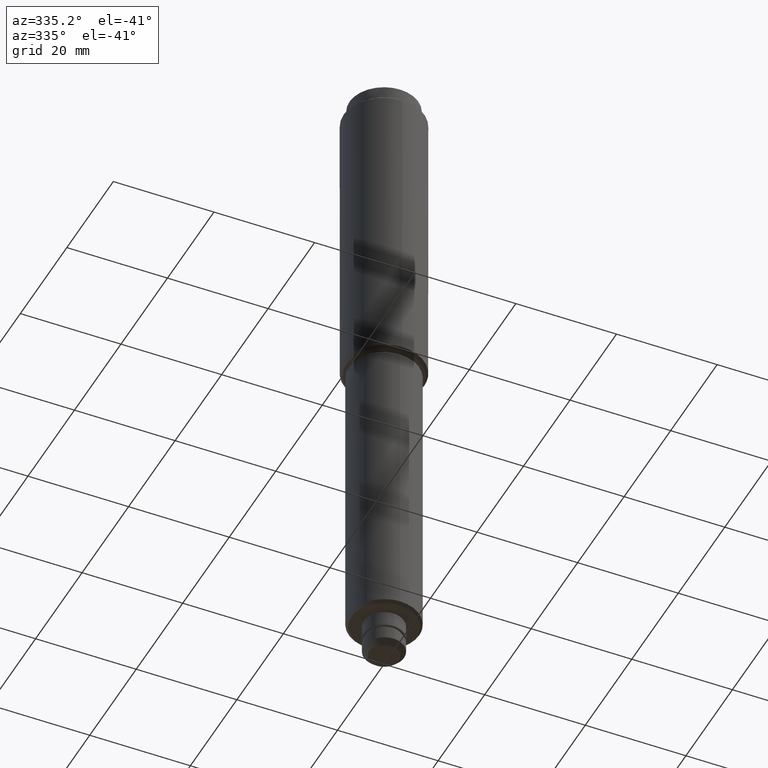
[diagram: clean part render]
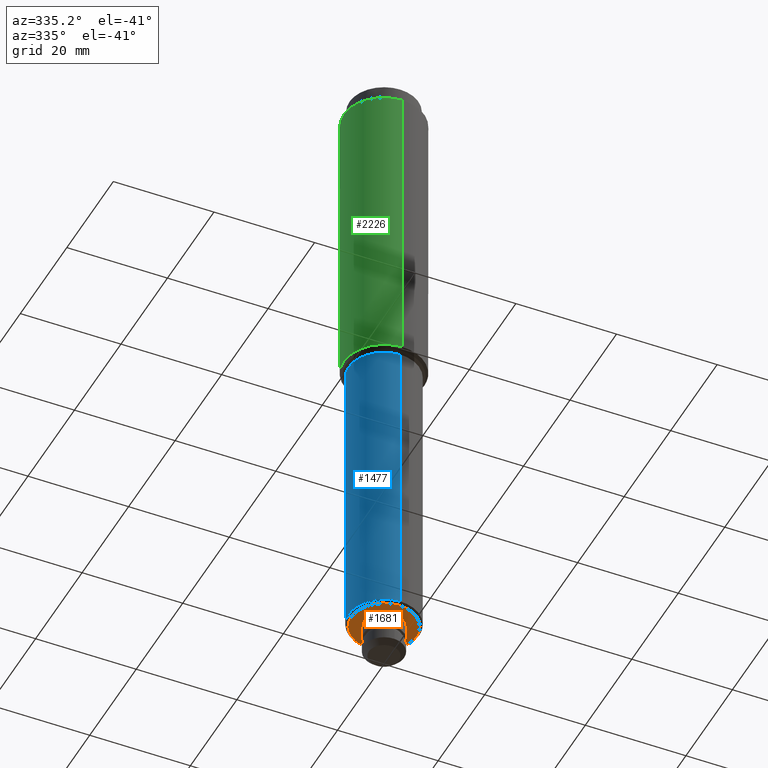
[diagram: same view with three faces highlighted in distinct colors, each labeled with its STEP entity id]
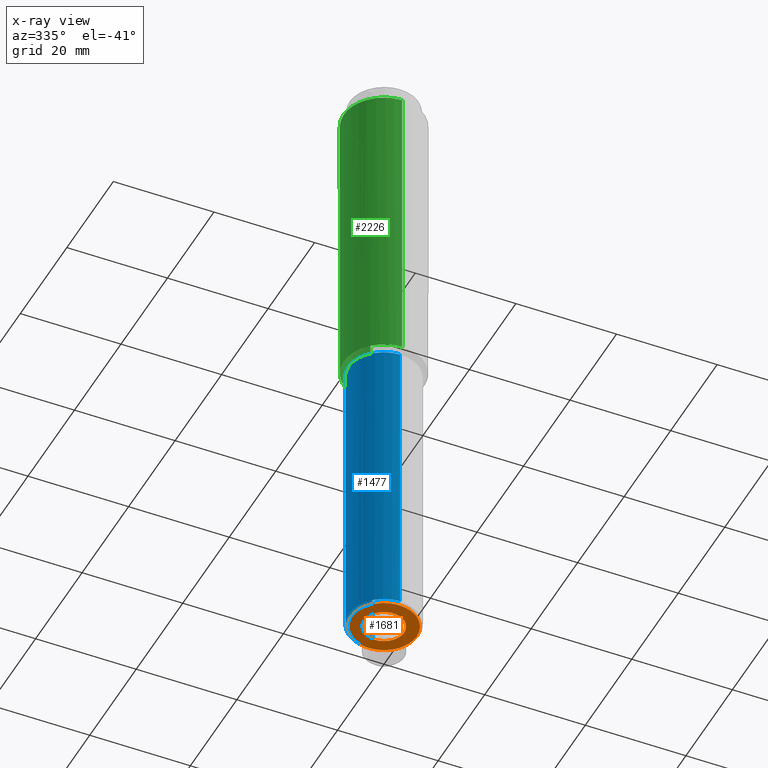
[diagram: x-ray of the same camera — body ghosted, the three highlighted faces saturated]
A machine part, auxiliary view with three faces highlighted in distinct colors.
The next image is the same camera in x-ray (body ghosted, the three faces saturated) — at least one of them is partly hidden behind the body in this view.
Their STEP definitions:

[orange] entity #1681 — the highlighted face is a freeform B-spline surface patch.
#1236=CARTESIAN_POINT('',(-6.332417995552420,1.466452294156194,7.000000000110163));
#1237=VERTEX_POINT('',#1236);
#1243=CARTESIAN_POINT('',(-6.500000000000000,0.0,7.0));
#1244=VERTEX_POINT('',#1243);
#1245=CARTESIAN_POINT('',(-6.500000000000000,0.0,7.0));
#1246=CARTESIAN_POINT('',(-6.500000000000000,0.742801545387060,7.0));
#1247=CARTESIAN_POINT('',(-6.332417995552420,1.466452294156195,7.000000000110163));
#1255=(BOUNDED_CURVE()B_SPLINE_CURVE(2,(#1245,#1246,#1247),.UNSPECIFIED.,.F.,.U.)B_SPLINE_CURVE_WITH_KNOTS((3,3),(0.500000000000000,0.538577028263429),.UNSPECIFIED.)CURVE()GEOMETRIC_REPRESENTATION_ITEM()RATIONAL_B_SPLINE_CURVE((1.0,0.954804200078667,0.923556557364962))REPRESENTATION_ITEM(''));
#1256=EDGE_CURVE('',#1244,#1237,#1255,.T.);
#1258=CARTESIAN_POINT('',(6.500000000000000,0.0,7.0));
#1259=VERTEX_POINT('',#1258);
#1260=CARTESIAN_POINT('',(6.500000000000000,0.0,7.0));
#1261=CARTESIAN_POINT('',(6.500000000000000,-6.500000000000000,6.999999999999999));
#1262=CARTESIAN_POINT('',(0.0,-6.500000000000000,7.0));
#1263=CARTESIAN_POINT('',(-6.500000000000000,-6.500000000000000,6.999999999999999));
#1264=CARTESIAN_POINT('',(-6.500000000000000,0.0,7.0));
#1272=(BOUNDED_CURVE()B_SPLINE_CURVE(2,(#1260,#1261,#1262,#1263,#1264),.UNSPECIFIED.,.F.,.U.)B_SPLINE_CURVE_WITH_KNOTS((3,2,3),(0.0,0.250000000000000,0.500000000000000),.UNSPECIFIED.)CURVE()GEOMETRIC_REPRESENTATION_ITEM()RATIONAL_B_SPLINE_CURVE((1.0,0.707106781186547,1.0,0.707106781186547,1.0))REPRESENTATION_ITEM(''));
#1273=EDGE_CURVE('',#1259,#1244,#1272,.T.);
#1275=CARTESIAN_POINT('',(-0.056722481756106,6.499752500046647,7.000000000138400));
#1276=VERTEX_POINT('',#1275);
#1277=CARTESIAN_POINT('',(-0.056722481756106,6.499752500046648,7.000000000138401));
#1278=CARTESIAN_POINT('',(-0.028361781350086,6.500000000000000,7.0));
#1279=CARTESIAN_POINT('',(0.0,6.500000000000000,7.0));
#1280=CARTESIAN_POINT('',(6.500000000000000,6.500000000000000,6.999999999999999));
#1281=CARTESIAN_POINT('',(6.500000000000000,0.0,7.0));
#1289=(BOUNDED_CURVE()B_SPLINE_CURVE(2,(#1277,#1278,#1279,#1280,#1281),.UNSPECIFIED.,.F.,.U.)B_SPLINE_CURVE_WITH_KNOTS((3,2,3),(0.748460105609975,0.750000000000000,1.0),.UNSPECIFIED.)CURVE()GEOMETRIC_REPRESENTATION_ITEM()RATIONAL_B_SPLINE_CURVE((0.996414027973032,0.998195901501891,1.0,0.707106781186547,1.0))REPRESENTATION_ITEM(''));
#1290=EDGE_CURVE('',#1276,#1259,#1289,.T.);
#1392=CARTESIAN_POINT('',(-6.332417995552420,1.466452294156195,7.000000000110163));
#1393=CARTESIAN_POINT('',(-5.177161718968210,6.455067102054395,7.0));
#1394=CARTESIAN_POINT('',(-0.056722481756106,6.499752500046647,7.000000000138400));
#1402=(BOUNDED_CURVE()B_SPLINE_CURVE(2,(#1392,#1393,#1394),.UNSPECIFIED.,.F.,.U.)B_SPLINE_CURVE_WITH_KNOTS((3,3),(0.538577028263430,0.748460105609974),.UNSPECIFIED.)CURVE()GEOMETRIC_REPRESENTATION_ITEM()RATIONAL_B_SPLINE_CURVE((0.923556557364961,0.753549905535979,0.996414027973031))REPRESENTATION_ITEM(''));
#1403=EDGE_CURVE('',#1237,#1276,#1402,.T.);
#1500=CARTESIAN_POINT('',(0.472136938807548,-3.972038105433208,6.999999999999997));
#1501=VERTEX_POINT('',#1500);
#1502=CARTESIAN_POINT('',(-4.0,0.0,7.0));
#1503=VERTEX_POINT('',#1502);
#1504=CARTESIAN_POINT('',(0.472136938807548,-3.972038105433208,6.999999999999998));
#1505=CARTESIAN_POINT('',(0.236896478790063,-4.000000000000001,7.0));
#1506=CARTESIAN_POINT('',(0.0,-4.0,7.0));
#1507=CARTESIAN_POINT('',(-4.000000000000000,-4.000000000000000,6.999999999999999));
#1508=CARTESIAN_POINT('',(-4.0,0.0,7.0));
#1516=(BOUNDED_CURVE()B_SPLINE_CURVE(2,(#1504,#1505,#1506,#1507,#1508),.UNSPECIFIED.,.F.,.U.)B_SPLINE_CURVE_WITH_KNOTS((3,2,3),(0.229562473500283,0.250000000000000,0.500000000000000),.UNSPECIFIED.)CURVE()GEOMETRIC_REPRESENTATION_ITEM()RATIONAL_B_SPLINE_CURVE((0.956026754157777,0.976055948315651,1.0,0.707106781186548,1.0))REPRESENTATION_ITEM(''));
#1517=EDGE_CURVE('',#1501,#1503,#1516,.T.);
#1519=CARTESIAN_POINT('',(-0.244191869233151,3.992539333681656,7.000000000000004));
#1520=VERTEX_POINT('',#1519);
#1521=CARTESIAN_POINT('',(-4.0,0.0,7.0));
#1522=CARTESIAN_POINT('',(-4.000000000000000,3.762826428866097,6.999999999999999));
#1523=CARTESIAN_POINT('',(-0.244191869233151,3.992539333681656,7.000000000000004));
#1531=(BOUNDED_CURVE()B_SPLINE_CURVE(2,(#1521,#1522,#1523),.UNSPECIFIED.,.F.,.U.)B_SPLINE_CURVE_WITH_KNOTS((3,3),(0.500000000000000,0.739333061162340),.UNSPECIFIED.)CURVE()GEOMETRIC_REPRESENTATION_ITEM()RATIONAL_B_SPLINE_CURVE((1.0,0.719603877390742,0.976072253678479))REPRESENTATION_ITEM(''));
#1532=EDGE_CURVE('',#1503,#1520,#1531,.T.);
#1599=CARTESIAN_POINT('',(4.0,0.0,7.0));
#1600=VERTEX_POINT('',#1599);
#1601=CARTESIAN_POINT('',(4.0,0.0,7.0));
#1602=CARTESIAN_POINT('',(4.0,-3.552698103480284,7.000000000000001));
#1603=CARTESIAN_POINT('',(0.472136938807548,-3.972038105433208,6.999999999999997));
#1611=(BOUNDED_CURVE()B_SPLINE_CURVE(2,(#1601,#1602,#1603),.UNSPECIFIED.,.F.,.U.)B_SPLINE_CURVE_WITH_KNOTS((3,3),(0.0,0.229562473500283),.UNSPECIFIED.)CURVE()GEOMETRIC_REPRESENTATION_ITEM()RATIONAL_B_SPLINE_CURVE((1.0,0.731050832870897,0.956026754157777))REPRESENTATION_ITEM(''));
#1612=EDGE_CURVE('',#1600,#1501,#1611,.T.);
#1646=CARTESIAN_POINT('',(-0.244191869233151,3.992539333681656,7.000000000000004));
#1647=CARTESIAN_POINT('',(-0.122209905532332,4.0,7.000000000000001));
#1648=CARTESIAN_POINT('',(0.0,4.0,7.0));
#1649=CARTESIAN_POINT('',(4.000000000000000,4.000000000000000,6.999999999999999));
#1650=CARTESIAN_POINT('',(4.0,0.0,7.0));
#1658=(BOUNDED_CURVE()B_SPLINE_CURVE(2,(#1646,#1647,#1648,#1649,#1650),.UNSPECIFIED.,.F.,.U.)B_SPLINE_CURVE_WITH_KNOTS((3,2,3),(0.739333061162340,0.750000000000000,1.0),.UNSPECIFIED.)CURVE()GEOMETRIC_REPRESENTATION_ITEM()RATIONAL_B_SPLINE_CURVE((0.976072253678479,0.987502903795806,1.0,0.707106781186548,1.0))REPRESENTATION_ITEM(''));
#1659=EDGE_CURVE('',#1520,#1600,#1658,.T.);
#1664=CARTESIAN_POINT('',(-7.149349974803477,-7.149337620398379,7.0));
#1665=CARTESIAN_POINT('',(7.149350323490650,-7.149337620398379,7.0));
#1666=CARTESIAN_POINT('',(-7.149349974803477,7.149090633651590,7.0));
#1667=CARTESIAN_POINT('',(7.149350323490650,7.149090633651590,7.0));
#1668=B_SPLINE_SURFACE_WITH_KNOTS('',1,1,((#1664,#1666),(#1665,#1667)),.UNSPECIFIED.,.F.,.F.,.U.,(2,2),(2,2),(0.0,14.298700298294129),(0.0,14.298428254049970),.UNSPECIFIED.);
#1669=ORIENTED_EDGE('',*,*,#1273,.T.);
#1670=ORIENTED_EDGE('',*,*,#1256,.T.);
#1671=ORIENTED_EDGE('',*,*,#1403,.T.);
#1672=ORIENTED_EDGE('',*,*,#1290,.T.);
#1673=EDGE_LOOP('',(#1669,#1670,#1671,#1672));
#1674=FACE_OUTER_BOUND('',#1673,.T.);
#1675=ORIENTED_EDGE('',*,*,#1532,.F.);
#1676=ORIENTED_EDGE('',*,*,#1517,.F.);
#1677=ORIENTED_EDGE('',*,*,#1612,.F.);
#1678=ORIENTED_EDGE('',*,*,#1659,.F.);
#1679=EDGE_LOOP('',(#1675,#1676,#1677,#1678));
#1680=FACE_BOUND('',#1679,.T.);
#1681=ADVANCED_FACE('',(#1674,#1680),#1668,.F.);

[blue] entity #1477 — the highlighted face is a freeform B-spline surface patch.
#1014=CARTESIAN_POINT('',(-2.829508024352875,6.402646666861356,66.499999999960835));
#1015=VERTEX_POINT('',#1014);
#1016=CARTESIAN_POINT('',(0.868896014641996,6.945863496768364,66.500000000000000));
#1017=VERTEX_POINT('',#1016);
#1018=CARTESIAN_POINT('',(-2.829508024352875,6.402646666861356,66.499999999960835));
#1019=CARTESIAN_POINT('',(-1.477809321245027,6.999999999999999,66.500000000000014));
#1020=CARTESIAN_POINT('',(0.0,7.0,66.500000000000000));
#1021=CARTESIAN_POINT('',(0.436134492818624,7.000000000000001,66.500000000000000));
#1022=CARTESIAN_POINT('',(0.868896014641996,6.945863496768364,66.500000000000000));
#1030=(BOUNDED_CURVE()B_SPLINE_CURVE(2,(#1018,#1019,#1020,#1021,#1022),.UNSPECIFIED.,.F.,.U.)B_SPLINE_CURVE_WITH_KNOTS((3,2,3),(0.181361578439353,0.250000000000000,0.271473928974741),.UNSPECIFIED.)CURVE()GEOMETRIC_REPRESENTATION_ITEM()RATIONAL_B_SPLINE_CURVE((0.883326595730142,0.919585087099310,1.0,0.974841727288067,0.954005430266879))REPRESENTATION_ITEM(''));
#1031=EDGE_CURVE('',#1015,#1017,#1030,.T.);
#1074=CARTESIAN_POINT('',(-0.061085748649971,-6.999733461447665,66.500000000000128));
#1075=VERTEX_POINT('',#1074);
#1132=CARTESIAN_POINT('',(-7.0,0.0,66.500000000000000));
#1133=VERTEX_POINT('',#1132);
#1134=CARTESIAN_POINT('',(-7.0,0.0,66.500000000000000));
#1135=CARTESIAN_POINT('',(-7.0,4.559590017484373,66.500000000000028));
#1136=CARTESIAN_POINT('',(-2.829508024352875,6.402646666861356,66.499999999960835));
#1144=(BOUNDED_CURVE()B_SPLINE_CURVE(2,(#1134,#1135,#1136),.UNSPECIFIED.,.F.,.U.)B_SPLINE_CURVE_WITH_KNOTS((3,3),(0.0,0.181361578439353),.UNSPECIFIED.)CURVE()GEOMETRIC_REPRESENTATION_ITEM()RATIONAL_B_SPLINE_CURVE((1.0,0.787521694087238,0.883326595730142))REPRESENTATION_ITEM(''));
#1145=EDGE_CURVE('',#1133,#1015,#1144,.T.);
#1147=CARTESIAN_POINT('',(-0.061085748649971,-6.999733461447665,66.500000000000128));
#1148=CARTESIAN_POINT('',(-7.0,-6.939178473524986,66.499999999999986));
#1149=CARTESIAN_POINT('',(-7.0,0.0,66.500000000000000));
#1157=(BOUNDED_CURVE()B_SPLINE_CURVE(2,(#1147,#1148,#1149),.UNSPECIFIED.,.F.,.U.)B_SPLINE_CURVE_WITH_KNOTS((3,3),(0.751539894351229,1.0),.UNSPECIFIED.)CURVE()GEOMETRIC_REPRESENTATION_ITEM()RATIONAL_B_SPLINE_CURVE((0.996414028062819,0.708910879639203,1.0))REPRESENTATION_ITEM(''));
#1158=EDGE_CURVE('',#1075,#1133,#1157,.T.);
#1219=CARTESIAN_POINT('',(-6.819527072206821,1.579256316132102,7.500000000043180));
#1220=VERTEX_POINT('',#1219);
#1221=CARTESIAN_POINT('',(-7.0,0.0,7.500000000000000));
#1222=VERTEX_POINT('',#1221);
#1223=CARTESIAN_POINT('',(-6.819527072206821,1.579256316132102,7.500000000043180));
#1224=CARTESIAN_POINT('',(-7.0,0.799940125141700,7.500000000000000));
#1225=CARTESIAN_POINT('',(-7.0,0.0,7.500000000000000));
#1233=(BOUNDED_CURVE()B_SPLINE_CURVE(2,(#1223,#1224,#1225),.UNSPECIFIED.,.F.,.U.)B_SPLINE_CURVE_WITH_KNOTS((3,3),(0.961422971766949,1.0),.UNSPECIFIED.)CURVE()GEOMETRIC_REPRESENTATION_ITEM()RATIONAL_B_SPLINE_CURVE((0.923556557414176,0.954804200114257,1.0))REPRESENTATION_ITEM(''));
#1234=EDGE_CURVE('',#1220,#1222,#1233,.T.);
#1292=CARTESIAN_POINT('',(-0.061085749998375,6.999733461641426,7.500000000205368));
#1293=VERTEX_POINT('',#1292);
#1299=CARTESIAN_POINT('',(0.868895089504906,6.945863612498691,7.499999999999996));
#1300=VERTEX_POINT('',#1299);
#1301=CARTESIAN_POINT('',(0.868895089504906,6.945863612498691,7.499999999999996));
#1302=CARTESIAN_POINT('',(0.436133556851698,7.0,7.500000000000000));
#1303=CARTESIAN_POINT('',(0.0,7.0,7.500000000000000));
#1304=CARTESIAN_POINT('',(-0.030543457252974,6.999999999999999,7.500000000000001));
#1305=CARTESIAN_POINT('',(-0.061085749998375,6.999733461641426,7.500000000205368));
#1313=(BOUNDED_CURVE()B_SPLINE_CURVE(2,(#1301,#1302,#1303,#1304,#1305),.UNSPECIFIED.,.F.,.U.)B_SPLINE_CURVE_WITH_KNOTS((3,2,3),(0.728526115950014,0.750000000000000,0.751539894410881),.UNSPECIFIED.)CURVE()GEOMETRIC_REPRESENTATION_ITEM()RATIONAL_B_SPLINE_CURVE((0.954005517448478,0.974841779920691,1.0,0.998195901477457,0.996414027924766))REPRESENTATION_ITEM(''));
#1314=EDGE_CURVE('',#1300,#1293,#1313,.T.);
#1331=CARTESIAN_POINT('',(-0.061085748777472,-6.999733461446677,7.499999999999998));
#1332=VERTEX_POINT('',#1331);
#1348=CARTESIAN_POINT('',(-7.0,0.0,7.500000000000000));
#1349=CARTESIAN_POINT('',(-7.0,-6.939178473592117,7.500000000000000));
#1350=CARTESIAN_POINT('',(-0.061085748777472,-6.999733461446677,7.499999999999998));
#1358=(BOUNDED_CURVE()B_SPLINE_CURVE(2,(#1348,#1349,#1350),.UNSPECIFIED.,.F.,.U.)B_SPLINE_CURVE_WITH_KNOTS((3,3),(0.0,0.248460105650475),.UNSPECIFIED.)CURVE()GEOMETRIC_REPRESENTATION_ITEM()RATIONAL_B_SPLINE_CURVE((1.0,0.708910879637207,0.996414028066762))REPRESENTATION_ITEM(''));
#1359=EDGE_CURVE('',#1222,#1332,#1358,.T.);
#1378=CARTESIAN_POINT('',(-0.061085749998375,6.999733461641426,7.500000000205368));
#1379=CARTESIAN_POINT('',(-5.575404929326499,6.951610724625880,7.499999999999997));
#1380=CARTESIAN_POINT('',(-6.819527072206821,1.579256316132102,7.500000000043180));
#1388=(BOUNDED_CURVE()B_SPLINE_CURVE(2,(#1378,#1379,#1380),.UNSPECIFIED.,.F.,.U.)B_SPLINE_CURVE_WITH_KNOTS((3,3),(0.751539894410881,0.961422971766948),.UNSPECIFIED.)CURVE()GEOMETRIC_REPRESENTATION_ITEM()RATIONAL_B_SPLINE_CURVE((0.996414027924767,0.753549905517719,0.923556557414174))REPRESENTATION_ITEM(''));
#1389=EDGE_CURVE('',#1293,#1220,#1388,.T.);
#1429=CARTESIAN_POINT('',(-0.061085748649971,-6.999733461447665,66.500000000000128));
#1430=CARTESIAN_POINT('',(-0.061085748777472,-6.999733461446677,7.499999999999998));
#1431=QUASI_UNIFORM_CURVE('',1,(#1429,#1430),.UNSPECIFIED.,.F.,.U.);
#1432=EDGE_CURVE('',#1075,#1332,#1431,.T.);
#1436=CARTESIAN_POINT('',(0.868896014641996,6.945863496768364,66.500000000000000));
#1437=CARTESIAN_POINT('',(0.868895089504906,6.945863612498691,7.499999999999996));
#1438=QUASI_UNIFORM_CURVE('',1,(#1436,#1437),.UNSPECIFIED.,.F.,.U.);
#1439=EDGE_CURVE('',#1017,#1300,#1438,.T.);
#1444=CARTESIAN_POINT('',(-0.061085748488617,-6.999733461449196,67.975000000000023));
#1445=CARTESIAN_POINT('',(-7.060819209937813,-6.938647712960579,67.975000000000023));
#1446=CARTESIAN_POINT('',(-6.999733461449196,0.061085748488617,67.975000000000023));
#1447=CARTESIAN_POINT('',(-6.938647712960579,7.060819209937813,67.975000000000023));
#1448=CARTESIAN_POINT('',(0.061085748488617,6.999733461449196,67.975000000000023));
#1449=CARTESIAN_POINT('',(0.466551112707215,6.996195018821929,67.975000000000009));
#1450=CARTESIAN_POINT('',(0.868896014558805,6.945863496778769,67.975000000000009));
#1451=CARTESIAN_POINT('',(-0.061085748488617,-6.999733461449196,5.988124999999997));
#1452=CARTESIAN_POINT('',(-7.060819209937813,-6.938647712960579,5.988124999999998));
#1453=CARTESIAN_POINT('',(-6.999733461449196,0.061085748488617,5.988124999999997));
#1454=CARTESIAN_POINT('',(-6.938647712960579,7.060819209937813,5.988124999999998));
#1455=CARTESIAN_POINT('',(0.061085748488617,6.999733461449196,5.988124999999997));
#1456=CARTESIAN_POINT('',(0.466551112707215,6.996195018821929,5.988124999999997));
#1457=CARTESIAN_POINT('',(0.868896014558805,6.945863496778769,5.988124999999998));
#1465=(BOUNDED_SURFACE()B_SPLINE_SURFACE(2,1,((#1444,#1451),(#1445,#1452),(#1446,#1453),(#1447,#1454),(#1448,#1455),(#1449,#1456),(#1450,#1457)),.UNSPECIFIED.,.F.,.F.,.U.)B_SPLINE_SURFACE_WITH_KNOTS((3,2,2,3),(2,2),(0.0,11.597979746446660,23.195959492893319,24.123797872609050),(0.0,61.986875000000033),.UNSPECIFIED.)GEOMETRIC_REPRESENTATION_ITEM()RATIONAL_B_SPLINE_SURFACE(((1.0,1.0),(0.707106781186548,0.707106781186548),(1.0,1.0),(0.707106781186548,0.707106781186548),(1.0,1.0),(0.976568542494924,0.976568542494924),(0.956886118190660,0.956886118190660)))REPRESENTATION_ITEM('')SURFACE());
#1466=ORIENTED_EDGE('',*,*,#1145,.T.);
#1467=ORIENTED_EDGE('',*,*,#1031,.T.);
#1468=ORIENTED_EDGE('',*,*,#1439,.T.);
#1469=ORIENTED_EDGE('',*,*,#1314,.T.);
#1470=ORIENTED_EDGE('',*,*,#1389,.T.);
#1471=ORIENTED_EDGE('',*,*,#1234,.T.);
#1472=ORIENTED_EDGE('',*,*,#1359,.T.);
#1473=ORIENTED_EDGE('',*,*,#1432,.F.);
#1474=ORIENTED_EDGE('',*,*,#1158,.T.);
#1475=EDGE_LOOP('',(#1466,#1467,#1468,#1469,#1470,#1471,#1472,#1473,#1474));
#1476=FACE_OUTER_BOUND('',#1475,.T.);
#1477=ADVANCED_FACE('',(#1476),#1465,.T.);

[green] entity #2226 — the highlighted face is a freeform B-spline surface patch.
#1763=CARTESIAN_POINT('',(-3.233723456084406,7.317310476522447,126.499999999984000));
#1764=VERTEX_POINT('',#1763);
#1765=CARTESIAN_POINT('',(0.993024016799799,7.938129710584148,126.500000000000000));
#1766=VERTEX_POINT('',#1765);
#1767=CARTESIAN_POINT('',(-3.233723456084406,7.317310476522447,126.499999999983980));
#1768=CARTESIAN_POINT('',(-1.688924938214858,8.0,126.500000000000040));
#1769=CARTESIAN_POINT('',(0.0,8.0,126.500000000000000));
#1770=CARTESIAN_POINT('',(0.498439420431001,8.0,126.500000000000030));
#1771=CARTESIAN_POINT('',(0.993024016799799,7.938129710584148,126.500000000000030));
#1779=(BOUNDED_CURVE()B_SPLINE_CURVE(2,(#1767,#1768,#1769,#1770,#1771),.UNSPECIFIED.,.F.,.U.)B_SPLINE_CURVE_WITH_KNOTS((3,2,3),(0.181361578452467,0.250000000000000,0.271473928977549),.UNSPECIFIED.)CURVE()GEOMETRIC_REPRESENTATION_ITEM()RATIONAL_B_SPLINE_CURVE((0.883326595743996,0.919585087114673,1.0,0.974841727284777,0.954005430261430))REPRESENTATION_ITEM(''));
#1780=EDGE_CURVE('',#1764,#1766,#1779,.T.);
#1823=CARTESIAN_POINT('',(-0.069812284123139,-7.999695384512066,126.500000000000100));
#1824=VERTEX_POINT('',#1823);
#1881=CARTESIAN_POINT('',(-8.0,0.0,126.500000000000000));
#1882=VERTEX_POINT('',#1881);
#1883=CARTESIAN_POINT('',(-8.0,0.0,126.500000000000000));
#1884=CARTESIAN_POINT('',(-8.0,5.210960020460579,126.499999999999990));
#1885=CARTESIAN_POINT('',(-3.233723456084405,7.317310476522447,126.499999999984010));
#1893=(BOUNDED_CURVE()B_SPLINE_CURVE(2,(#1883,#1884,#1885),.UNSPECIFIED.,.F.,.U.)B_SPLINE_CURVE_WITH_KNOTS((3,3),(0.0,0.181361578452467),.UNSPECIFIED.)CURVE()GEOMETRIC_REPRESENTATION_ITEM()RATIONAL_B_SPLINE_CURVE((1.0,0.787521694071874,0.883326595743996))REPRESENTATION_ITEM(''));
#1894=EDGE_CURVE('',#1882,#1764,#1893,.T.);
#1896=CARTESIAN_POINT('',(-0.069812284123139,-7.999695384512066,126.500000000000100));
#1897=CARTESIAN_POINT('',(-8.0,-7.930489684219920,126.500000000000000));
#1898=CARTESIAN_POINT('',(-8.0,0.0,126.500000000000000));
#1906=(BOUNDED_CURVE()B_SPLINE_CURVE(2,(#1896,#1897,#1898),.UNSPECIFIED.,.F.,.U.)B_SPLINE_CURVE_WITH_KNOTS((3,3),(0.751539894346978,1.0),.UNSPECIFIED.)CURVE()GEOMETRIC_REPRESENTATION_ITEM()RATIONAL_B_SPLINE_CURVE((0.996414028072655,0.708910879634224,1.0))REPRESENTATION_ITEM(''));
#1907=EDGE_CURVE('',#1824,#1882,#1906,.T.);
#1968=CARTESIAN_POINT('',(-7.793745225405280,1.804864361065702,67.500000000023320));
#1969=VERTEX_POINT('',#1968);
#1970=CARTESIAN_POINT('',(-8.0,0.0,67.500000000000000));
#1971=VERTEX_POINT('',#1970);
#1972=CARTESIAN_POINT('',(-7.793745225405280,1.804864361065703,67.500000000023320));
#1973=CARTESIAN_POINT('',(-8.0,0.914217285645125,67.500000000000000));
#1974=CARTESIAN_POINT('',(-8.0,0.0,67.500000000000000));
#1982=(BOUNDED_CURVE()B_SPLINE_CURVE(2,(#1972,#1973,#1974),.UNSPECIFIED.,.F.,.U.)B_SPLINE_CURVE_WITH_KNOTS((3,3),(0.961422971776260,1.0),.UNSPECIFIED.)CURVE()GEOMETRIC_REPRESENTATION_ITEM()RATIONAL_B_SPLINE_CURVE((0.923556557429260,0.954804200125166,1.0))REPRESENTATION_ITEM(''));
#1983=EDGE_CURVE('',#1969,#1971,#1982,.T.);
#2041=CARTESIAN_POINT('',(-0.069812285270795,7.999695384676914,67.500000000174765));
#2042=VERTEX_POINT('',#2041);
#2048=CARTESIAN_POINT('',(0.993024016826374,7.938129710580823,67.500000000000000));
#2049=VERTEX_POINT('',#2048);
#2050=CARTESIAN_POINT('',(0.993024016826374,7.938129710580823,67.500000000000000));
#2051=CARTESIAN_POINT('',(0.498439420457892,8.0,67.500000000000000));
#2052=CARTESIAN_POINT('',(0.0,8.0,67.500000000000000));
#2053=CARTESIAN_POINT('',(-0.034906807847944,8.0,67.500000000000000));
#2054=CARTESIAN_POINT('',(-0.069812285270795,7.999695384676914,67.500000000174765));
#2062=(BOUNDED_CURVE()B_SPLINE_CURVE(2,(#2050,#2051,#2052,#2053,#2054),.UNSPECIFIED.,.F.,.U.)B_SPLINE_CURVE_WITH_KNOTS((3,2,3),(0.728526071021322,0.750000000000000,0.751539894391454),.UNSPECIFIED.)CURVE()GEOMETRIC_REPRESENTATION_ITEM()RATIONAL_B_SPLINE_CURVE((0.954005430259238,0.974841727283454,1.0,0.998195901500217,0.996414027969725))REPRESENTATION_ITEM(''));
#2063=EDGE_CURVE('',#2049,#2042,#2062,.T.);
#2080=CARTESIAN_POINT('',(-0.069812284231278,-7.999695384511238,67.500000000000000));
#2081=VERTEX_POINT('',#2080);
#2097=CARTESIAN_POINT('',(-8.0,0.0,67.500000000000000));
#2098=CARTESIAN_POINT('',(-8.0,-7.930489684275460,67.500000000000000));
#2099=CARTESIAN_POINT('',(-0.069812284231278,-7.999695384511238,67.500000000000000));
#2107=(BOUNDED_CURVE()B_SPLINE_CURVE(2,(#2097,#2098,#2099),.UNSPECIFIED.,.F.,.U.)B_SPLINE_CURVE_WITH_KNOTS((3,3),(0.0,0.248460105654255),.UNSPECIFIED.)CURVE()GEOMETRIC_REPRESENTATION_ITEM()RATIONAL_B_SPLINE_CURVE((1.0,0.708910879632779,0.996414028075509))REPRESENTATION_ITEM(''));
#2108=EDGE_CURVE('',#1971,#2081,#2107,.T.);
#2127=CARTESIAN_POINT('',(-0.069812285270795,7.999695384676914,67.500000000174765));
#2128=CARTESIAN_POINT('',(-6.371891348010140,7.944697971694246,67.500000000000014));
#2129=CARTESIAN_POINT('',(-7.793745225405280,1.804864361065703,67.500000000023320));
#2137=(BOUNDED_CURVE()B_SPLINE_CURVE(2,(#2127,#2128,#2129),.UNSPECIFIED.,.F.,.U.)B_SPLINE_CURVE_WITH_KNOTS((3,3),(0.751539894391455,0.961422971776260),.UNSPECIFIED.)CURVE()GEOMETRIC_REPRESENTATION_ITEM()RATIONAL_B_SPLINE_CURVE((0.996414027969723,0.753549905491209,0.923556557429259))REPRESENTATION_ITEM(''));
#2138=EDGE_CURVE('',#2042,#1969,#2137,.T.);
#2178=CARTESIAN_POINT('',(-0.069812284123139,-7.999695384512066,126.500000000000100));
#2179=CARTESIAN_POINT('',(-0.069812284231278,-7.999695384511238,67.500000000000000));
#2180=QUASI_UNIFORM_CURVE('',1,(#2178,#2179),.UNSPECIFIED.,.F.,.U.);
#2181=EDGE_CURVE('',#1824,#2081,#2180,.T.);
#2185=CARTESIAN_POINT('',(0.993024016799799,7.938129710584148,126.500000000000000));
#2186=CARTESIAN_POINT('',(0.993024016826374,7.938129710580823,67.500000000000000));
#2187=QUASI_UNIFORM_CURVE('',1,(#2185,#2186),.UNSPECIFIED.,.F.,.U.);
#2188=EDGE_CURVE('',#1766,#2049,#2187,.T.);
#2193=CARTESIAN_POINT('',(-0.069812283986991,-7.999695384513368,127.974999999999990));
#2194=CARTESIAN_POINT('',(-8.069507668500359,-7.929883100526377,127.975000000000020));
#2195=CARTESIAN_POINT('',(-7.999695384513368,0.069812283986991,127.974999999999990));
#2196=CARTESIAN_POINT('',(-7.929883100526377,8.069507668500359,127.975000000000020));
#2197=CARTESIAN_POINT('',(0.069812283986991,7.999695384513368,127.974999999999990));
#2198=CARTESIAN_POINT('',(0.533201271665389,7.995651450082205,127.975000000000020));
#2199=CARTESIAN_POINT('',(0.993024016638634,7.938129710604309,127.975000000000010));
#2200=CARTESIAN_POINT('',(-0.069812283986991,-7.999695384513368,65.988124999999997));
#2201=CARTESIAN_POINT('',(-8.069507668500359,-7.929883100526377,65.988124999999982));
#2202=CARTESIAN_POINT('',(-7.999695384513368,0.069812283986991,65.988124999999997));
#2203=CARTESIAN_POINT('',(-7.929883100526377,8.069507668500359,65.988124999999982));
#2204=CARTESIAN_POINT('',(0.069812283986991,7.999695384513368,65.988124999999997));
#2205=CARTESIAN_POINT('',(0.533201271665389,7.995651450082205,65.988124999999997));
#2206=CARTESIAN_POINT('',(0.993024016638634,7.938129710604309,65.988124999999997));
#2214=(BOUNDED_SURFACE()B_SPLINE_SURFACE(2,1,((#2193,#2200),(#2194,#2201),(#2195,#2202),(#2196,#2203),(#2197,#2204),(#2198,#2205),(#2199,#2206)),.UNSPECIFIED.,.F.,.F.,.U.)B_SPLINE_SURFACE_WITH_KNOTS((3,2,2,3),(2,2),(0.0,13.254833995939039,26.509667991878079,27.570054711553201),(0.0,61.986875000000033),.UNSPECIFIED.)GEOMETRIC_REPRESENTATION_ITEM()RATIONAL_B_SPLINE_SURFACE(((1.0,1.0),(0.707106781186548,0.707106781186548),(1.0,1.0),(0.707106781186548,0.707106781186548),(1.0,1.0),(0.976568542494924,0.976568542494924),(0.956886118190660,0.956886118190660)))REPRESENTATION_ITEM('')SURFACE());
#2215=ORIENTED_EDGE('',*,*,#1894,.T.);
#2216=ORIENTED_EDGE('',*,*,#1780,.T.);
#2217=ORIENTED_EDGE('',*,*,#2188,.T.);
#2218=ORIENTED_EDGE('',*,*,#2063,.T.);
#2219=ORIENTED_EDGE('',*,*,#2138,.T.);
#2220=ORIENTED_EDGE('',*,*,#1983,.T.);
#2221=ORIENTED_EDGE('',*,*,#2108,.T.);
#2222=ORIENTED_EDGE('',*,*,#2181,.F.);
#2223=ORIENTED_EDGE('',*,*,#1907,.T.);
#2224=EDGE_LOOP('',(#2215,#2216,#2217,#2218,#2219,#2220,#2221,#2222,#2223));
#2225=FACE_OUTER_BOUND('',#2224,.T.);
#2226=ADVANCED_FACE('',(#2225),#2214,.T.);